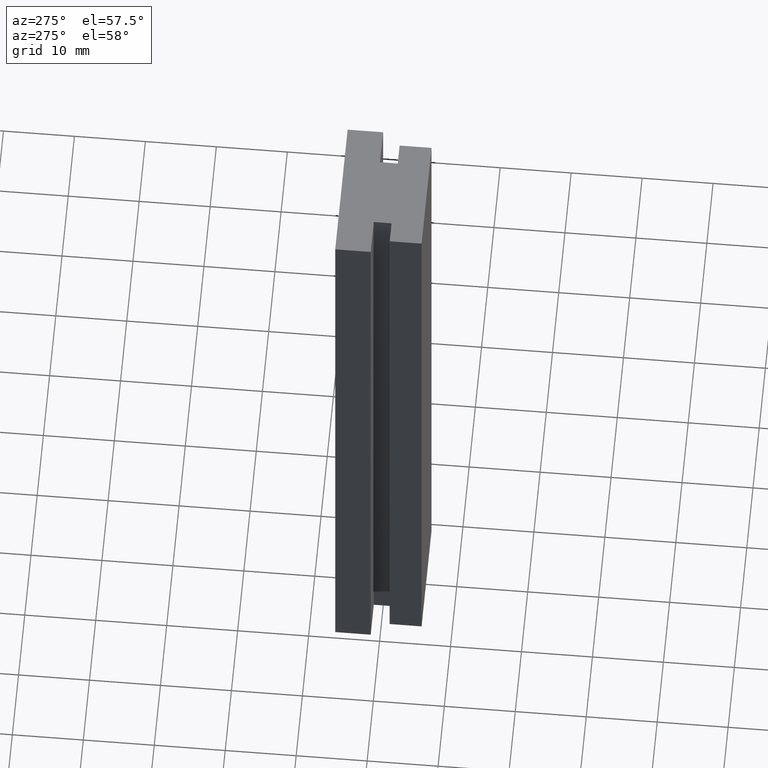
[diagram: clean part render]
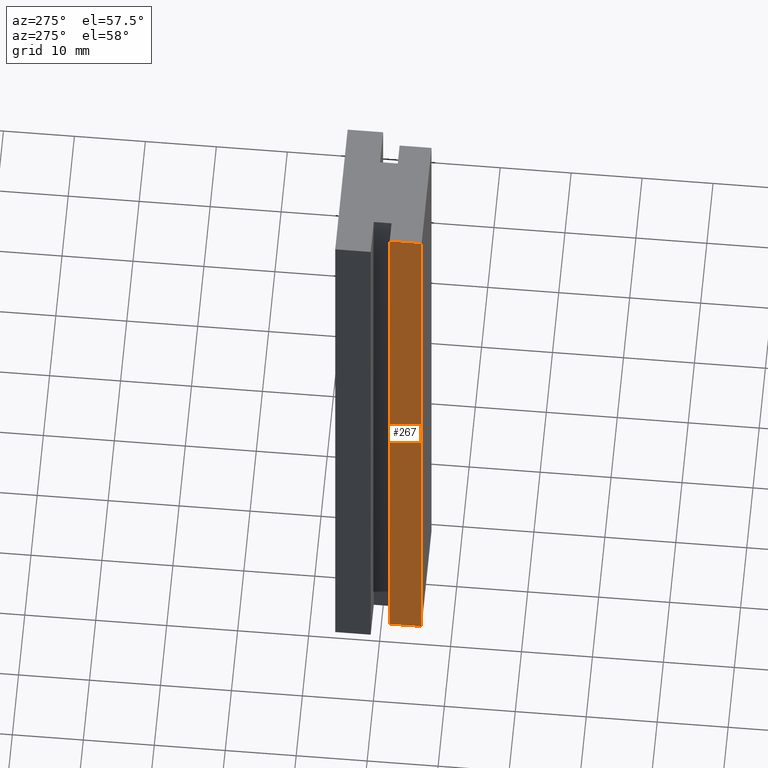
[diagram: same view with one face highlighted and labeled with its STEP entity id]
A machine part, auxiliary view. The second image highlights one B-rep face of the part: STEP entity #267.
In plain terms, the highlighted planar face has unit normal (-1, 0, 0).
Its self-contained STEP definition (entity closure, byte-faithful):
#21=FACE_OUTER_BOUND('',#35,.T.);
#35=EDGE_LOOP('',(#199,#200,#201,#202));
#61=LINE('',#396,#97);
#62=LINE('',#399,#98);
#63=LINE('',#401,#99);
#64=LINE('',#402,#100);
#97=VECTOR('',#323,100.);
#98=VECTOR('',#326,4.5);
#99=VECTOR('',#327,4.5);
#100=VECTOR('',#328,100.);
#127=VERTEX_POINT('',#392);
#128=VERTEX_POINT('',#394);
#129=VERTEX_POINT('',#398);
#130=VERTEX_POINT('',#400);
#157=EDGE_CURVE('',#127,#128,#61,.T.);
#158=EDGE_CURVE('',#127,#129,#62,.T.);
#159=EDGE_CURVE('',#130,#128,#63,.T.);
#160=EDGE_CURVE('',#129,#130,#64,.T.);
#199=ORIENTED_EDGE('',*,*,#158,.F.);
#200=ORIENTED_EDGE('',*,*,#157,.T.);
#201=ORIENTED_EDGE('',*,*,#159,.F.);
#202=ORIENTED_EDGE('',*,*,#160,.F.);
#253=PLANE('',#283);
#267=ADVANCED_FACE('',(#21),#253,.T.);
#283=AXIS2_PLACEMENT_3D('',#397,#324,#325);
#323=DIRECTION('',(0.,0.,1.));
#324=DIRECTION('center_axis',(-1.,0.,0.));
#325=DIRECTION('ref_axis',(0.,-1.,0.));
#326=DIRECTION('',(0.,1.,0.));
#327=DIRECTION('',(0.,-1.,0.));
#328=DIRECTION('',(0.,0.,1.));
#392=CARTESIAN_POINT('',(-8.,-5.75,0.));
#394=CARTESIAN_POINT('',(-8.,-5.75,100.));
#396=CARTESIAN_POINT('',(-8.,-5.75,0.));
#397=CARTESIAN_POINT('Origin',(-8.,-1.25,0.));
#398=CARTESIAN_POINT('',(-8.,-1.25,0.));
#399=CARTESIAN_POINT('',(-8.,-5.75,0.));
#400=CARTESIAN_POINT('',(-8.,-1.25,100.));
#401=CARTESIAN_POINT('',(-8.,-5.75,100.));
#402=CARTESIAN_POINT('',(-8.,-1.25,0.));